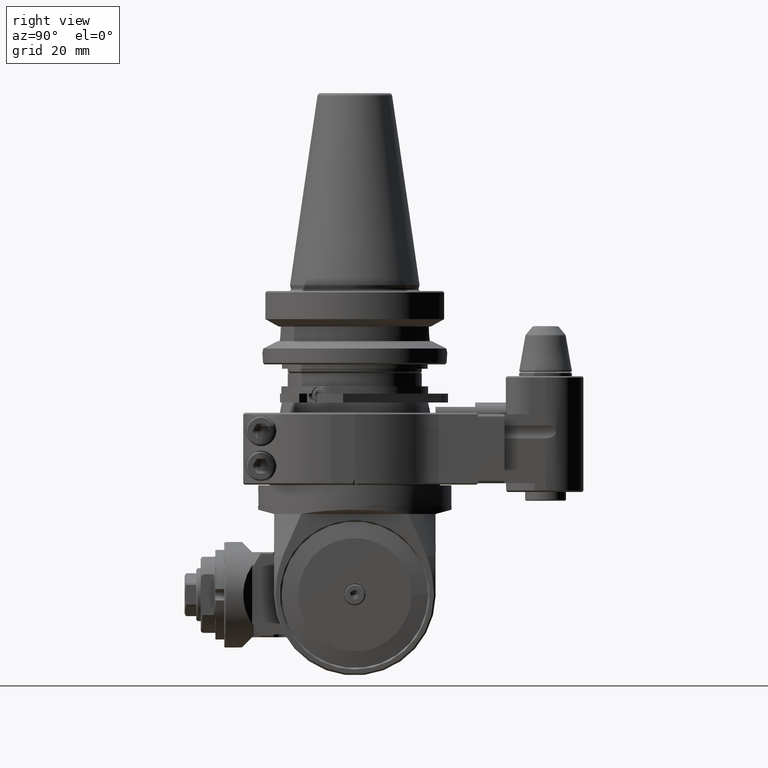
[diagram: clean part render]
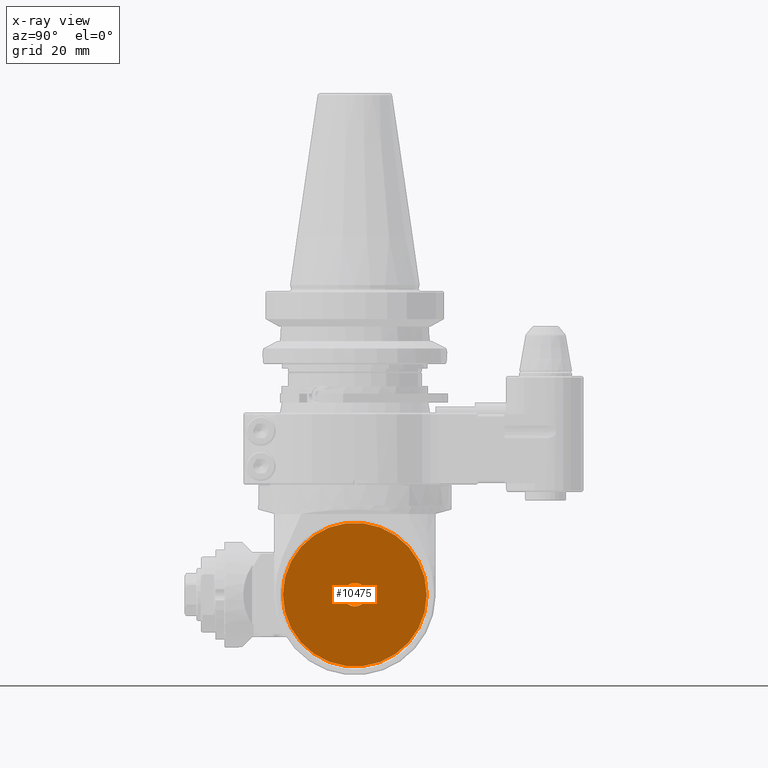
[diagram: x-ray — body ghosted, one internal face saturated and labeled with its STEP entity id]
A machine part, right view, then the same camera in x-ray: the body is ghosted and one INTERNAL B-rep face — a face not visible from any outside direction — is saturated and labeled: STEP entity #10475.
In plain terms, the highlighted planar face has unit normal (1, 0, -0).
Its self-contained STEP definition (entity closure, byte-faithful):
#277=FACE_BOUND('',#3453,.T.);
#2785=FACE_OUTER_BOUND('',#3452,.T.);
#3452=EDGE_LOOP('',(#9263));
#3453=EDGE_LOOP('',(#9264));
#3956=CIRCLE('',#11557,4.);
#3957=CIRCLE('',#11559,24.5);
#4924=VERTEX_POINT('',#18424);
#4925=VERTEX_POINT('',#18428);
#6389=EDGE_CURVE('',#4924,#4924,#3956,.T.);
#6391=EDGE_CURVE('',#4925,#4925,#3957,.T.);
#9263=ORIENTED_EDGE('',*,*,#6391,.T.);
#9264=ORIENTED_EDGE('',*,*,#6389,.T.);
#9913=PLANE('',#11558);
#10475=ADVANCED_FACE('',(#2785,#277),#9913,.F.);
#11557=AXIS2_PLACEMENT_3D('',#18425,#14371,#14372);
#11558=AXIS2_PLACEMENT_3D('',#18427,#14374,#14375);
#11559=AXIS2_PLACEMENT_3D('',#18429,#14376,#14377);
#14371=DIRECTION('center_axis',(0.,0.,-1.));
#14372=DIRECTION('ref_axis',(-1.,0.,0.));
#14374=DIRECTION('center_axis',(0.,0.,-1.));
#14375=DIRECTION('ref_axis',(-1.,0.,0.));
#14376=DIRECTION('center_axis',(0.,0.,1.));
#14377=DIRECTION('ref_axis',(-1.,0.,0.));
#18424=CARTESIAN_POINT('',(-4.,-105.5,-23.000000000001));
#18425=CARTESIAN_POINT('Origin',(0.,-105.5,-23.000000000001));
#18427=CARTESIAN_POINT('Origin',(-18.75,-105.5,-23.000000000001));
#18428=CARTESIAN_POINT('',(24.5,-105.5,-23.000000000001));
#18429=CARTESIAN_POINT('Origin',(0.,-105.5,-23.000000000001));